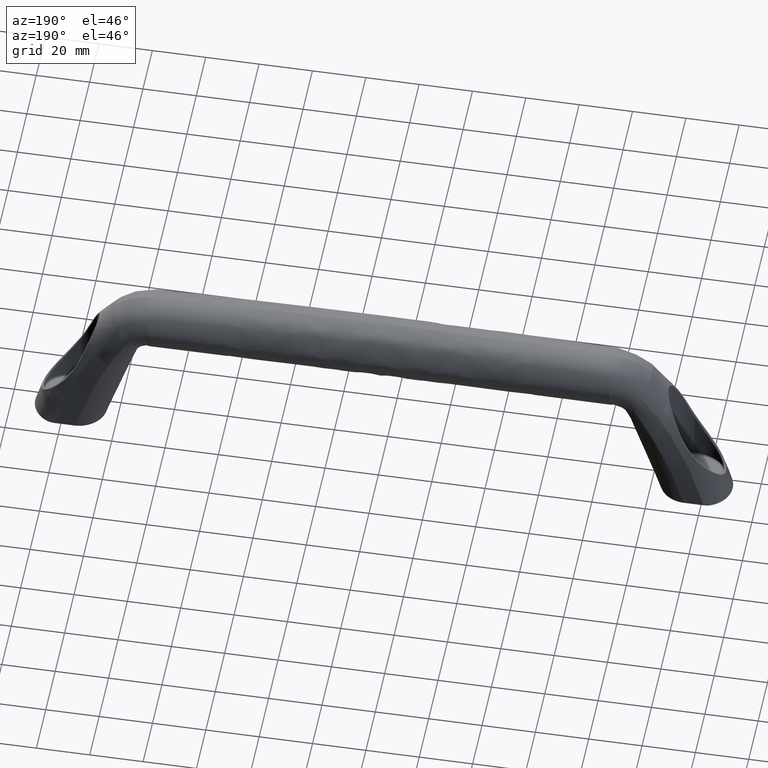
[diagram: clean part render]
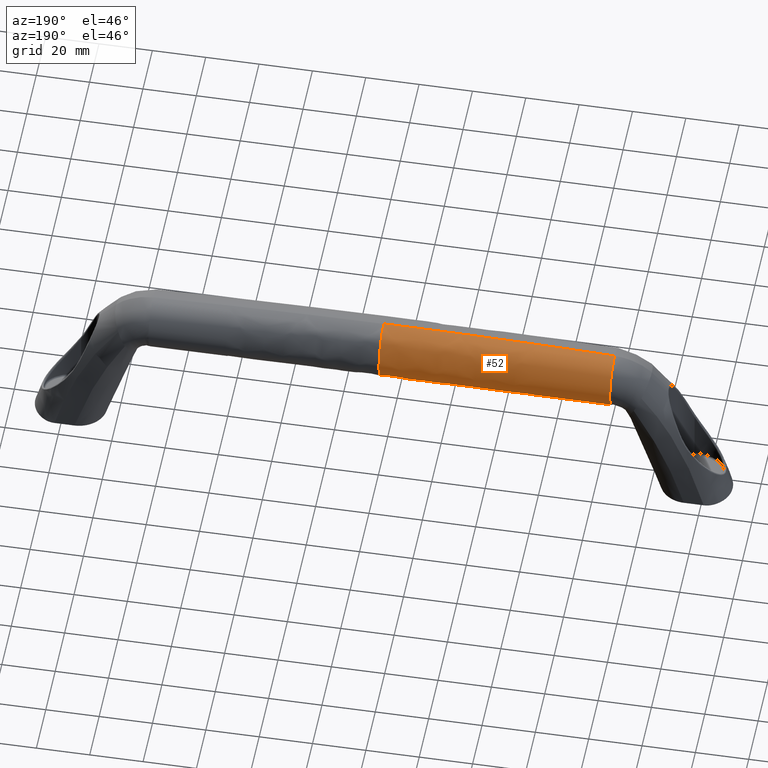
[diagram: same view with one face highlighted and labeled with its STEP entity id]
A machine part, auxiliary view. The second image highlights one B-rep face of the part: STEP entity #52.
In plain terms, the highlighted face is a freeform B-spline surface patch.
Its self-contained STEP definition (entity closure, byte-faithful):
#52=ADVANCED_FACE('',(#227),#226,.T.);
#226=( BOUNDED_SURFACE() B_SPLINE_SURFACE( 3,3,((#2243,#2244,#2245,#2246,#2247,#2248,#2249,#2250,#2251,#2252,#2253,#2254,#2255,#2256,#2257,#2258,#2259,#2260,#2261,#2262,#2263,#2264,#2265,#2266,#2267,#2268,#2269,#2270,#2271,#2272,#2273,#2274,#2275),(#2276,#2277,#2278,#2279,#2280,#2281,#2282,#2283,#2284,#2285,#2286,#2287,#2288,#2289,#2290,#2291,#2292,#2293,#2294,#2295,#2296,#2297,#2298,#2299,#2300,#2301,#2302,#2303,#2304,#2305,#2306,#2307,#2308),(#2309,#2310,#2311,#2312,#2313,#2314,#2315,#2316,#2317,#2318,#2319,#2320,#2321,#2322,#2323,#2324,#2325,#2326,#2327,#2328,#2329,#2330,#2331,#2332,#2333,#2334,#2335,#2336,#2337,#2338,#2339,#2340,#2341),(#2342,#2343,#2344,#2345,#2346,#2347,#2348,#2349,#2350,#2351,#2352,#2353,#2354,#2355,#2356,#2357,#2358,#2359,#2360,#2361,#2362,#2363,#2364,#2365,#2366,#2367,#2368,#2369,#2370,#2371,#2372,#2373,#2374),(#2375,#2376,#2377,#2378,#2379,#2380,#2381,#2382,#2383,#2384,#2385,#2386,#2387,#2388,#2389,#2390,#2391,#2392,#2393,#2394,#2395,#2396,#2397,#2398,#2399,#2400,#2401,#2402,#2403,#2404,#2405,#2406,#2407),(#2408,#2409,#2410,#2411,#2412,#2413,#2414,#2415,#2416,#2417,#2418,#2419,#2420,#2421,#2422,#2423,#2424,#2425,#2426,#2427,#2428,#2429,#2430,#2431,#2432,#2433,#2434,#2435,#2436,#2437,#2438,#2439,#2440)), .UNSPECIFIED.,.F.,.F.,.F.) B_SPLINE_SURFACE_WITH_KNOTS((4,1,1,4),(4,1,1,1,1,1,1,1,1,1,1,1,1,1,1,1,1,1,1,1,1,1,1,1,1,1,1,1,1,1,4),(-2.22044604925E-15,2.88297743297E+01,5.76595486595E+01,8.64893229921E+01),(0.00000000000E+00,1.13196355772E+00,2.26392711543E+00,3.39589067315E+00,4.52785423087E+00,5.65981778858E+00,6.79178134630E+00,7.92374490401E+00,9.05570846173E+00,1.01876720194E+01,1.13196355772E+01,1.24515991349E+01,1.35835626926E+01,1.47155262503E+01,1.58474898080E+01,1.69794533657E+01,1.81114169235E+01,1.92433804812E+01,2.03753440389E+01,2.15073075966E+01,2.26392711543E+01,2.37712347120E+01,2.49031982698E+01,2.60351618275E+01,2.71671253852E+01,2.82990889429E+01,2.94310525006E+01,3.05630160583E+01,3.16949796161E+01,3.28269431738E+01,3.39589067315E+01), .UNSPECIFIED. ) GEOMETRIC_REPRESENTATION_ITEM() RATIONAL_B_SPLINE_SURFACE(((1.00000000000E+00,1.00000000000E+00,1.00000000000E+00,1.00000000000E+00,1.00000000000E+00,1.00000000000E+00,1.00000000000E+00,1.00000000000E+00,1.00000000000E+00,1.00000000000E+00,1.00000000000E+00,1.00000000000E+00,1.00000000000E+00,1.00000000000E+00,1.00000000000E+00,1.00000000000E+00,1.00000000000E+00,1.00000000000E+00,1.00000000000E+00,1.00000000000E+00,1.00000000000E+00,1.00000000000E+00,1.00000000000E+00,1.00000000000E+00,1.00000000000E+00,1.00000000000E+00,1.00000000000E+00,1.00000000000E+00,1.00000000000E+00,1.00000000000E+00,1.00000000000E+00,1.00000000000E+00,1.00000000000E+00),(1.00000000000E+00,1.00000000000E+00,1.00000000000E+00,1.00000000000E+00,1.00000000000E+00,1.00000000000E+00,1.00000000000E+00,1.00000000000E+00,1.00000000000E+00,1.00000000000E+00,1.00000000000E+00,1.00000000000E+00,1.00000000000E+00,1.00000000000E+00,1.00000000000E+00,1.00000000000E+00,1.00000000000E+00,1.00000000000E+00,1.00000000000E+00,1.00000000000E+00,1.00000000000E+00,1.00000000000E+00,1.00000000000E+00,1.00000000000E+00,1.00000000000E+00,1.00000000000E+00,1.00000000000E+00,1.00000000000E+00,1.00000000000E+00,1.00000000000E+00,1.00000000000E+00,1.00000000000E+00,1.00000000000E+00),(1.00000000000E+00,1.00000000000E+00,1.00000000000E+00,1.00000000000E+00,1.00000000000E+00,1.00000000000E+00,1.00000000000E+00,1.00000000000E+00,1.00000000000E+00,1.00000000000E+00,1.00000000000E+00,1.00000000000E+00,1.00000000000E+00,1.00000000000E+00,1.00000000000E+00,1.00000000000E+00,1.00000000000E+00,1.00000000000E+00,1.00000000000E+00,1.00000000000E+00,1.00000000000E+00,1.00000000000E+00,1.00000000000E+00,1.00000000000E+00,1.00000000000E+00,1.00000000000E+00,1.00000000000E+00,1.00000000000E+00,1.00000000000E+00,1.00000000000E+00,1.00000000000E+00,1.00000000000E+00,1.00000000000E+00),(1.00000000000E+00,1.00000000000E+00,1.00000000000E+00,1.00000000000E+00,1.00000000000E+00,1.00000000000E+00,1.00000000000E+00,1.00000000000E+00,1.00000000000E+00,1.00000000000E+00,1.00000000000E+00,1.00000000000E+00,1.00000000000E+00,1.00000000000E+00,1.00000000000E+00,1.00000000000E+00,1.00000000000E+00,1.00000000000E+00,1.00000000000E+00,1.00000000000E+00,1.00000000000E+00,1.00000000000E+00,1.00000000000E+00,1.00000000000E+00,1.00000000000E+00,1.00000000000E+00,1.00000000000E+00,1.00000000000E+00,1.00000000000E+00,1.00000000000E+00,1.00000000000E+00,1.00000000000E+00,1.00000000000E+00),(1.00000000000E+00,1.00000000000E+00,1.00000000000E+00,1.00000000000E+00,1.00000000000E+00,1.00000000000E+00,1.00000000000E+00,1.00000000000E+00,1.00000000000E+00,1.00000000000E+00,1.00000000000E+00,1.00000000000E+00,1.00000000000E+00,1.00000000000E+00,1.00000000000E+00,1.00000000000E+00,1.00000000000E+00,1.00000000000E+00,1.00000000000E+00,1.00000000000E+00,1.00000000000E+00,1.00000000000E+00,1.00000000000E+00,1.00000000000E+00,1.00000000000E+00,1.00000000000E+00,1.00000000000E+00,1.00000000000E+00,1.00000000000E+00,1.00000000000E+00,1.00000000000E+00,1.00000000000E+00,1.00000000000E+00),(1.00000000000E+00,1.00000000000E+00,1.00000000000E+00,1.00000000000E+00,1.00000000000E+00,1.00000000000E+00,1.00000000000E+00,1.00000000000E+00,1.00000000000E+00,1.00000000000E+00,1.00000000000E+00,1.00000000000E+00,1.00000000000E+00,1.00000000000E+00,1.00000000000E+00,1.00000000000E+00,1.00000000000E+00,1.00000000000E+00,1.00000000000E+00,1.00000000000E+00,1.00000000000E+00,1.00000000000E+00,1.00000000000E+00,1.00000000000E+00,1.00000000000E+00,1.00000000000E+00,1.00000000000E+00,1.00000000000E+00,1.00000000000E+00,1.00000000000E+00,1.00000000000E+00,1.00000000000E+00,1.00000000000E+00))) REPRESENTATION_ITEM('') SURFACE() );
#227=FACE_OUTER_BOUND('',#2441,.T.);
#2243=CARTESIAN_POINT('',(1.55659404912E-12,-1.20000000040E+01,9.00000000399E+00));
#2244=CARTESIAN_POINT('',(1.57435141283E-12,-1.16158452896E+01,9.00000000399E+00));
#2245=CARTESIAN_POINT('',(1.60955904689E-12,-1.08468813137E+01,9.04224869099E+00));
#2246=CARTESIAN_POINT('',(1.66200386786E-12,-9.70778322208E+00,9.23160777299E+00));
#2247=CARTESIAN_POINT('',(1.71285208239E-12,-8.59591558188E+00,9.54477703599E+00));
#2248=CARTESIAN_POINT('',(1.76081371706E-12,-7.52538479268E+00,9.97782217699E+00));
#2249=CARTESIAN_POINT('',(1.80677695027E-12,-6.50864986007E+00,1.05256287250E+01));
#2250=CARTESIAN_POINT('',(1.85118587126E-12,-5.55804649991E+00,1.11816308370E+01));
#2251=CARTESIAN_POINT('',(1.89270821238E-12,-4.68514189989E+00,1.19377605590E+01));
#2252=CARTESIAN_POINT('',(1.92601490312E-12,-3.90007278569E+00,1.27854876870E+01));
#2253=CARTESIAN_POINT('',(1.95843341544E-12,-3.21394448134E+00,1.37122097166E+01));
#2254=CARTESIAN_POINT('',(1.98618899105E-12,-2.63234439968E+00,1.47102556607E+01));
#2255=CARTESIAN_POINT('',(2.00728322852E-12,-2.16367491594E+00,1.57661991356E+01));
#2256=CARTESIAN_POINT('',(2.02282635087E-12,-1.81351810109E+00,1.68674833019E+01));
#2257=CARTESIAN_POINT('',(2.03304040269E-12,-1.58645038489E+00,1.79996011452E+01));
#2258=CARTESIAN_POINT('',(2.03836947321E-12,-1.48453646889E+00,1.91501644517E+01));
#2259=CARTESIAN_POINT('',(2.03614902716E-12,-1.51025115579E+00,2.03046140883E+01));
#2260=CARTESIAN_POINT('',(2.03015382283E-12,-1.65904683929E+00,2.14505081516E+01));
#2261=CARTESIAN_POINT('',(2.02038386021E-12,-1.94485266209E+00,2.25686164421E+01));
#2262=CARTESIAN_POINT('',(2.00262029182E-12,-2.30405942514E+00,2.36645445311E+01));
#2263=CARTESIAN_POINT('',(1.98374650040E-12,-2.69617613201E+00,2.47496545682E+01));
#2264=CARTESIAN_POINT('',(1.96420657517E-12,-3.13574661354E+00,2.58165315122E+01));
#2265=CARTESIAN_POINT('',(1.94555482835E-12,-3.60060805886E+00,2.68708257062E+01));
#2266=CARTESIAN_POINT('',(1.91779925274E-12,-4.15886070966E+00,2.78826072742E+01));
#2267=CARTESIAN_POINT('',(1.88649096344E-12,-4.85178297301E+00,2.88077760712E+01));
#2268=CARTESIAN_POINT('',(1.84963155903E-12,-5.65455101414E+00,2.96386614145E+01));
#2269=CARTESIAN_POINT('',(1.81143988698E-12,-6.55764958649E+00,3.03597091163E+01));
#2270=CARTESIAN_POINT('',(1.76680892139E-12,-7.54525366514E+00,3.09594425880E+01));
#2271=CARTESIAN_POINT('',(1.71818115291E-12,-8.60177426324E+00,3.14286467588E+01));
#2272=CARTESIAN_POINT('',(1.66733293838E-12,-9.70825643407E+00,3.17566276823E+01));
#2273=CARTESIAN_POINT('',(1.61636841478E-12,-1.08482253092E+01,3.19558398309E+01));
#2274=CARTESIAN_POINT('',(1.58073181593E-12,-1.16160956324E+01,3.20000000044E+01));
#2275=CARTESIAN_POINT('',(1.56416056380E-12,-1.20000000040E+01,3.20000000044E+01));
#2276=CARTESIAN_POINT('',(-9.60910898758E+00,-1.20000000040E+01,9.00000000399E+00));
#2277=CARTESIAN_POINT('',(-9.60912987691E+00,-1.16174073802E+01,9.00185185599E+00));
#2278=CARTESIAN_POINT('',(-9.60917111667E+00,-1.08515756932E+01,9.04746625199E+00));
#2279=CARTESIAN_POINT('',(-9.60923136856E+00,-9.71700480867E+00,9.24087219099E+00));
#2280=CARTESIAN_POINT('',(-9.60929003829E+00,-8.60933885869E+00,9.55712158899E+00));
#2281=CARTESIAN_POINT('',(-9.60934717152E+00,-7.54251319403E+00,9.99234811299E+00));
#2282=CARTESIAN_POINT('',(-9.60940283095E+00,-6.52888713495E+00,1.05414987070E+01));
#2283=CARTESIAN_POINT('',(-9.60945709385E+00,-5.58063485286E+00,1.11981124870E+01));
#2284=CARTESIAN_POINT('',(-9.60951005337E+00,-4.70919531125E+00,1.19542648670E+01));
#2285=CARTESIAN_POINT('',(-9.60956182170E+00,-3.92466543889E+00,1.28014665792E+01));
#2286=CARTESIAN_POINT('',(-9.60961250791E+00,-3.23782997485E+00,1.37276335844E+01));
#2287=CARTESIAN_POINT('',(-9.60966229681E+00,-2.65474644284E+00,1.47244534051E+01));
#2288=CARTESIAN_POINT('',(-9.60971123621E+00,-2.18317945439E+00,1.57796048448E+01));
#2289=CARTESIAN_POINT('',(-9.60975957735E+00,-1.82912130809E+00,1.68798954201E+01));
#2290=CARTESIAN_POINT('',(-9.60980738587E+00,-1.59684198129E+00,1.80118992719E+01));
#2291=CARTESIAN_POINT('',(-9.60985492708E+00,-1.48874730909E+00,1.91624600230E+01));
#2292=CARTESIAN_POINT('',(-9.60990231089E+00,-1.50708795369E+00,2.03177476060E+01));
#2293=CARTESIAN_POINT('',(-9.60994972480E+00,-1.64792320899E+00,2.14651870001E+01));
#2294=CARTESIAN_POINT('',(-9.60999733092E+00,-1.92348670659E+00,2.25863740940E+01));
#2295=CARTESIAN_POINT('',(-9.61004531568E+00,-2.27716223194E+00,2.36847845524E+01));
#2296=CARTESIAN_POINT('',(-9.61009378257E+00,-2.67196378315E+00,2.47696816079E+01));
#2297=CARTESIAN_POINT('',(-9.61014311983E+00,-3.12256057274E+00,2.58313354259E+01));
#2298=CARTESIAN_POINT('',(-9.61019254718E+00,-3.59705149825E+00,2.68810764143E+01));
#2299=CARTESIAN_POINT('',(-9.61024279085E+00,-4.16575297209E+00,2.78864293585E+01));
#2300=CARTESIAN_POINT('',(-9.61029414984E+00,-4.86481648031E+00,2.88057770641E+01));
#2301=CARTESIAN_POINT('',(-9.61034670332E+00,-5.67118748135E+00,2.96316613184E+01));
#2302=CARTESIAN_POINT('',(-9.61040059879E+00,-6.57519288973E+00,3.03490635622E+01));
#2303=CARTESIAN_POINT('',(-9.61045593479E+00,-7.56156814142E+00,3.09469860495E+01));
#2304=CARTESIAN_POINT('',(-9.61051280439E+00,-8.61510821923E+00,3.14164850806E+01));
#2305=CARTESIAN_POINT('',(-9.61057127877E+00,-9.71755467281E+00,3.17474795273E+01));
#2306=CARTESIAN_POINT('',(-9.61063140996E+00,-1.08527938164E+01,3.19506194978E+01));
#2307=CARTESIAN_POINT('',(-9.61067262311E+00,-1.16176363121E+01,3.19981481434E+01));
#2308=CARTESIAN_POINT('',(-9.61069351243E+00,-1.20000000040E+01,3.19999999953E+01));
#2309=CARTESIAN_POINT('',(-2.88273269627E+01,-1.20000000040E+01,9.00000000499E+00));
#2310=CARTESIAN_POINT('',(-2.88273892556E+01,-1.16205315615E+01,9.00432090699E+00));
#2311=CARTESIAN_POINT('',(-2.88275122246E+01,-1.08609644524E+01,9.05419741099E+00));
#2312=CARTESIAN_POINT('',(-2.88276918549E+01,-9.73544798185E+00,9.25199310399E+00));
#2313=CARTESIAN_POINT('',(-2.88278667387E+01,-8.63618541230E+00,9.57069880799E+00));
#2314=CARTESIAN_POINT('',(-2.88280370130E+01,-7.57676999672E+00,1.00065841390E+01));
#2315=CARTESIAN_POINT('',(-2.88282028659E+01,-6.56936168471E+00,1.05547188640E+01));
#2316=CARTESIAN_POINT('',(-2.88283645292E+01,-5.62581155876E+00,1.12088520160E+01));
#2317=CARTESIAN_POINT('',(-2.88285222824E+01,-4.75730213396E+00,1.19613457490E+01));
#2318=CARTESIAN_POINT('',(-2.88286764620E+01,-3.97385074529E+00,1.28037926700E+01));
#2319=CARTESIAN_POINT('',(-2.88288273953E+01,-3.28560096187E+00,1.37251456645E+01));
#2320=CARTESIAN_POINT('',(-2.88289756366E+01,-2.69955052915E+00,1.47158092768E+01));
#2321=CARTESIAN_POINT('',(-2.88291213294E+01,-2.22218853128E+00,1.57656726843E+01));
#2322=CARTESIAN_POINT('',(-2.88292652274E+01,-1.86032772209E+00,1.68602721160E+01));
#2323=CARTESIAN_POINT('',(-2.88294075276E+01,-1.61762517399E+00,1.79883440228E+01));
#2324=CARTESIAN_POINT('',(-2.88295490258E+01,-1.49716898949E+00,1.91351957014E+01));
#2325=CARTESIAN_POINT('',(-2.88296900519E+01,-1.50076154969E+00,2.02884552157E+01));
#2326=CARTESIAN_POINT('',(-2.88298311682E+01,-1.62567594839E+00,2.14352813097E+01));
#2327=CARTESIAN_POINT('',(-2.88299728612E+01,-1.88075479559E+00,2.25589220487E+01));
#2328=CARTESIAN_POINT('',(-2.88301156901E+01,-2.22336784554E+00,2.36585932841E+01));
#2329=CARTESIAN_POINT('',(-2.88302599654E+01,-2.62353908545E+00,2.47393604146E+01));
#2330=CARTESIAN_POINT('',(-2.88304068518E+01,-3.09618849113E+00,2.57868640188E+01));
#2331=CARTESIAN_POINT('',(-2.88305540084E+01,-3.58993837703E+00,2.68237946345E+01));
#2332=CARTESIAN_POINT('',(-2.88307036141E+01,-4.17953749695E+00,2.78125863692E+01));
#2333=CARTESIAN_POINT('',(-2.88308565657E+01,-4.89088349491E+00,2.87165879302E+01));
#2334=CARTESIAN_POINT('',(-2.88310131007E+01,-5.70446041577E+00,2.95287660450E+01));
#2335=CARTESIAN_POINT('',(-2.88311736618E+01,-6.61027949622E+00,3.02351734107E+01));
#2336=CARTESIAN_POINT('',(-2.88313385443E+01,-7.59419709397E+00,3.08257699677E+01));
#2337=CARTESIAN_POINT('',(-2.88315080278E+01,-8.64177613122E+00,3.12921547578E+01));
#2338=CARTESIAN_POINT('',(-2.88316823255E+01,-9.73615115028E+00,3.16254722892E+01));
#2339=CARTESIAN_POINT('',(-2.88318615937E+01,-1.08619308308E+01,3.18327639415E+01));
#2340=CARTESIAN_POINT('',(-2.88319844829E+01,-1.16207176713E+01,3.18845602235E+01));
#2341=CARTESIAN_POINT('',(-2.88320467757E+01,-1.20000000040E+01,3.18888811255E+01));
#2342=CARTESIAN_POINT('',(-5.76546539264E+01,-1.20000000040E+01,9.00000000499E+00));
#2343=CARTESIAN_POINT('',(-5.76547484548E+01,-1.16252178335E+01,9.00432028899E+00));
#2344=CARTESIAN_POINT('',(-5.76549342782E+01,-1.08750475911E+01,9.05318157099E+00));
#2345=CARTESIAN_POINT('',(-5.76552033669E+01,-9.76311274162E+00,9.24644931499E+00));
#2346=CARTESIAN_POINT('',(-5.76554629625E+01,-8.67645524272E+00,9.55772690199E+00));
#2347=CARTESIAN_POINT('',(-5.76557133392E+01,-7.62815520076E+00,9.98348786299E+00));
#2348=CARTESIAN_POINT('',(-5.76559548731E+01,-6.63007350934E+00,1.05189862060E+01));
#2349=CARTESIAN_POINT('',(-5.76561880278E+01,-5.69357661762E+00,1.11582858390E+01));
#2350=CARTESIAN_POINT('',(-5.76564133623E+01,-4.82946236803E+00,1.18941790220E+01));
#2351=CARTESIAN_POINT('',(-5.76566315495E+01,-4.04762870489E+00,1.27183811764E+01));
#2352=CARTESIAN_POINT('',(-5.76568432441E+01,-3.35725744240E+00,1.36214005763E+01));
#2353=CARTESIAN_POINT('',(-5.76570495548E+01,-2.76675665861E+00,1.45917172974E+01));
#2354=CARTESIAN_POINT('',(-5.76572507686E+01,-2.28070214661E+00,1.56225360778E+01));
#2355=CARTESIAN_POINT('',(-5.76574483927E+01,-1.90713734309E+00,1.66974862154E+01));
#2356=CARTESIAN_POINT('',(-5.76576428211E+01,-1.64879996299E+00,1.78085476261E+01));
#2357=CARTESIAN_POINT('',(-5.76578356457E+01,-1.50980151009E+00,1.89387231171E+01));
#2358=CARTESIAN_POINT('',(-5.76580275259E+01,-1.49127194349E+00,2.00778279497E+01));
#2359=CARTESIAN_POINT('',(-5.76582195866E+01,-1.59230505748E+00,2.12126215149E+01));
#2360=CARTESIAN_POINT('',(-5.76584128007E+01,-1.81665692908E+00,2.23288301428E+01));
#2361=CARTESIAN_POINT('',(-5.76586082866E+01,-2.14267626594E+00,2.34192799649E+01));
#2362=CARTESIAN_POINT('',(-5.76588066652E+01,-2.55090203888E+00,2.44827396292E+01));
#2363=CARTESIAN_POINT('',(-5.76590102661E+01,-3.05663036871E+00,2.54979053342E+01));
#2364=CARTESIAN_POINT('',(-5.76592144075E+01,-3.57926869518E+00,2.65045078119E+01));
#2365=CARTESIAN_POINT('',(-5.76594234468E+01,-4.20021428425E+00,2.74573451539E+01));
#2366=CARTESIAN_POINT('',(-5.76596391781E+01,-4.92998401681E+00,2.83272149192E+01));
#2367=CARTESIAN_POINT('',(-5.76598620762E+01,-5.75436981740E+00,2.91077212460E+01));
#2368=CARTESIAN_POINT('',(-5.76600930264E+01,-6.66290940595E+00,2.97865237160E+01));
#2369=CARTESIAN_POINT('',(-5.76603326197E+01,-7.64314052281E+00,3.03550187987E+01));
#2370=CARTESIAN_POINT('',(-5.76605814146E+01,-8.68177799920E+00,3.08056196485E+01));
#2371=CARTESIAN_POINT('',(-5.76608398382E+01,-9.76404586650E+00,3.11313092283E+01));
#2372=CARTESIAN_POINT('',(-5.76611082026E+01,-1.08756363524E+01,3.13337158248E+01));
#2373=CARTESIAN_POINT('',(-5.76612938664E+01,-1.16253397102E+01,3.13845051755E+01));
#2374=CARTESIAN_POINT('',(-5.76613883948E+01,-1.20000000040E+01,3.13888254596E+01));
#2375=CARTESIAN_POINT('',(-7.68728719025E+01,-1.20000000040E+01,9.00000000499E+00));
#2376=CARTESIAN_POINT('',(-7.68729171387E+01,-1.16283420148E+01,9.00185140199E+00));
#2377=CARTESIAN_POINT('',(-7.68730032999E+01,-1.08844363502E+01,9.04509892099E+00));
#2378=CARTESIAN_POINT('',(-7.68731196797E+01,-9.78155591481E+00,9.22794260899E+00));
#2379=CARTESIAN_POINT('',(-7.68732234022E+01,-8.70330179633E+00,9.52686269298E+00));
#2380=CARTESIAN_POINT('',(-7.68733148327E+01,-7.66241200345E+00,9.93846865098E+00));
#2381=CARTESIAN_POINT('',(-7.68733944728E+01,-6.67054805910E+00,1.04581373160E+01));
#2382=CARTESIAN_POINT('',(-7.68734629407E+01,-5.73875332352E+00,1.10801425110E+01));
#2383=CARTESIAN_POINT('',(-7.68735209815E+01,-4.87756919074E+00,1.17975632390E+01));
#2384=CARTESIAN_POINT('',(-7.68735694928E+01,-4.09681401128E+00,1.26021967911E+01));
#2385=CARTESIAN_POINT('',(-7.68736093472E+01,-3.40502842943E+00,1.34855883708E+01));
#2386=CARTESIAN_POINT('',(-7.68736420230E+01,-2.81156074492E+00,1.44349350740E+01));
#2387=CARTESIAN_POINT('',(-7.68736679029E+01,-2.31971122350E+00,1.54456520128E+01));
#2388=CARTESIAN_POINT('',(-7.68736889966E+01,-1.93834375709E+00,1.65000971972E+01));
#2389=CARTESIAN_POINT('',(-7.68737058295E+01,-1.66958315569E+00,1.75924128534E+01));
#2390=CARTESIAN_POINT('',(-7.68737205238E+01,-1.51822319049E+00,1.87040654625E+01));
#2391=CARTESIAN_POINT('',(-7.68737339590E+01,-1.48494553938E+00,1.98263284168E+01));
#2392=CARTESIAN_POINT('',(-7.68737476349E+01,-1.57005779688E+00,2.09456948723E+01));
#2393=CARTESIAN_POINT('',(-7.68737628485E+01,-1.77392501798E+00,2.20495433358E+01));
#2394=CARTESIAN_POINT('',(-7.68737810913E+01,-2.08888187954E+00,2.31264401254E+01));
#2395=CARTESIAN_POINT('',(-7.68738031910E+01,-2.50247734118E+00,2.41709560552E+01));
#2396=CARTESIAN_POINT('',(-7.68738322538E+01,-3.03025828710E+00,2.51571577371E+01));
#2397=CARTESIAN_POINT('',(-7.68738620373E+01,-3.57215557396E+00,2.61361360324E+01));
#2398=CARTESIAN_POINT('',(-7.68738983513E+01,-4.21399880911E+00,2.70575983553E+01));
#2399=CARTESIAN_POINT('',(-7.68739435879E+01,-4.95605103141E+00,2.78973081666E+01));
#2400=CARTESIAN_POINT('',(-7.68739983804E+01,-5.78764275182E+00,2.86492945444E+01));
#2401=CARTESIAN_POINT('',(-7.68740639089E+01,-6.69799601244E+00,2.93022883268E+01));
#2402=CARTESIAN_POINT('',(-7.68741409615E+01,-7.67576947536E+00,2.98486436697E+01));
#2403=CARTESIAN_POINT('',(-7.68742302829E+01,-8.70844591119E+00,3.02813164689E+01));
#2404=CARTESIAN_POINT('',(-7.68743324427E+01,-9.78264234398E+00,3.05945153239E+01));
#2405=CARTESIAN_POINT('',(-7.68744478568E+01,-1.08847733667E+01,3.07862597928E+01));
#2406=CARTESIAN_POINT('',(-7.68745338051E+01,-1.16284210695E+01,3.08314409069E+01));
#2407=CARTESIAN_POINT('',(-7.68745790413E+01,-1.20000000040E+01,3.08332923044E+01));
#2408=CARTESIAN_POINT('',(-8.64819808911E+01,-1.20000000040E+01,9.00000000499E+00));
#2409=CARTESIAN_POINT('',(-8.64819808911E+01,-1.16299041054E+01,9.00000000599E+00));
#2410=CARTESIAN_POINT('',(-8.64819760411E+01,-1.08891307298E+01,9.03920673599E+00));
#2411=CARTESIAN_POINT('',(-8.64819542964E+01,-9.79077750140E+00,9.21498753598E+00));
#2412=CARTESIAN_POINT('',(-8.64819183121E+01,-8.71672507314E+00,9.50587800798E+00));
#2413=CARTESIAN_POINT('',(-8.64818684994E+01,-7.67954040480E+00,9.90855560398E+00));
#2414=CARTESIAN_POINT('',(-8.64818054225E+01,-6.69078533398E+00,1.04184585700E+01));
#2415=CARTESIAN_POINT('',(-8.64817297768E+01,-5.76134167647E+00,1.10299656860E+01));
#2416=CARTESIAN_POINT('',(-8.64816424007E+01,-4.90162260210E+00,1.17362993260E+01));
#2417=CARTESIAN_POINT('',(-8.64815443039E+01,-4.12140666448E+00,1.25292977173E+01));
#2418=CARTESIAN_POINT('',(-8.64814364680E+01,-3.42891392294E+00,1.34010245267E+01));
#2419=CARTESIAN_POINT('',(-8.64813205563E+01,-2.83396278808E+00,1.43380353608E+01));
#2420=CARTESIAN_POINT('',(-8.64811969992E+01,-2.33921576195E+00,1.53368505186E+01));
#2421=CARTESIAN_POINT('',(-8.64810680576E+01,-1.95394696409E+00,1.63791923664E+01));
#2422=CARTESIAN_POINT('',(-8.64809343225E+01,-1.67997475199E+00,1.74602842851E+01));
#2423=CARTESIAN_POINT('',(-8.64807981815E+01,-1.52243403069E+00,1.85608245930E+01));
#2424=CARTESIAN_POINT('',(-8.64806606242E+01,-1.48178233738E+00,1.96728157480E+01));
#2425=CARTESIAN_POINT('',(-8.64805233374E+01,-1.55893416658E+00,2.07826177886E+01));
#2426=CARTESIAN_POINT('',(-8.64803877807E+01,-1.75255906248E+00,2.18784353098E+01));
#2427=CARTESIAN_POINT('',(-8.64802556318E+01,-2.06198468634E+00,2.29467047229E+01));
#2428=CARTESIAN_POINT('',(-8.64801278220E+01,-2.47826499233E+00,2.39798979253E+01));
#2429=CARTESIAN_POINT('',(-8.64800078456E+01,-3.01707224630E+00,2.49497667354E+01));
#2430=CARTESIAN_POINT('',(-8.64798886799E+01,-3.56859901334E+00,2.59130820795E+01));
#2431=CARTESIAN_POINT('',(-8.64797768612E+01,-4.22089107155E+00,2.68170060329E+01));
#2432=CARTESIAN_POINT('',(-8.64796750804E+01,-4.96908453871E+00,2.76397850069E+01));
#2433=CARTESIAN_POINT('',(-8.64795840498E+01,-5.80427921903E+00,2.83756605501E+01));
#2434=CARTESIAN_POINT('',(-8.64795050973E+01,-6.71553931568E+00,2.90138991286E+01));
#2435=CARTESIAN_POINT('',(-8.64794391095E+01,-7.69208395164E+00,2.95473337413E+01));
#2436=CARTESIAN_POINT('',(-8.64793869241E+01,-8.72177986718E+00,2.99691916551E+01));
#2437=CARTESIAN_POINT('',(-8.64793491818E+01,-9.79194058272E+00,3.02742942876E+01));
#2438=CARTESIAN_POINT('',(-8.64793263507E+01,-1.08893418739E+01,3.04588568326E+01));
#2439=CARTESIAN_POINT('',(-8.64793212611E+01,-1.16299617491E+01,3.04999999216E+01));
#2440=CARTESIAN_POINT('',(-8.64793212611E+01,-1.20000000040E+01,3.04999999225E+01));
#2441=EDGE_LOOP('',(#7472,#7473,#7474,#7475));
#7472=ORIENTED_EDGE('',*,*,#7757,.T.);
#7473=ORIENTED_EDGE('',*,*,#7756,.F.);
#7474=ORIENTED_EDGE('',*,*,#7758,.T.);
#7475=ORIENTED_EDGE('',*,*,#7759,.T.);
#7756=EDGE_CURVE('',#8180,#8160,#8187,.T.);
#7757=EDGE_CURVE('',#8193,#8160,#8194,.T.);
#7758=EDGE_CURVE('',#8180,#8200,#8201,.T.);
#7759=EDGE_CURVE('',#8200,#8193,#8207,.T.);
#8160=VERTEX_POINT('',#9401);
#8180=VERTEX_POINT('',#9432);
#8187=(BOUNDED_CURVE() B_SPLINE_CURVE(3,(#9452,#9453,#9454,#9455,#9456,#9457,#9458,#9459,#9460,#9461,#9462,#9463,#9464,#9465,#9466,#9467),.UNSPECIFIED.,.F.,.F.) B_SPLINE_CURVE_WITH_KNOTS((4,3,3,3,3,4),(0.00000000000E+00,1.04403474347E+01,1.15505649820E+01,1.26601474979E+01,2.36853680444E+01,3.47105885908E+01),.UNSPECIFIED.) CURVE() GEOMETRIC_REPRESENTATION_ITEM() RATIONAL_B_SPLINE_CURVE((1.00000000000E+00,9.18391695828E-01,9.18391695828E-01,1.00000000000E+00,1.00000000000E+00,1.00000000000E+00,1.00000000000E+00,1.00000000000E+00,1.00000000000E+00,1.00000000000E+00,9.17549066432E-01,9.17549066432E-01,1.00000000000E+00,9.17549066432E-01,9.17549066432E-01,1.00000000000E+00)) REPRESENTATION_ITEM('') );
#8193=VERTEX_POINT('',#9468);
#8194=LINE('',#9469,#9470);
#8200=VERTEX_POINT('',#9472);
#8201=CIRCLE('',#9476,2.49364930544E+03);
#8207=(BOUNDED_CURVE() B_SPLINE_CURVE(3,(#9477,#9478,#9479,#9480,#9481,#9482,#9483,#9484,#9485,#9486,#9487,#9488,#9489,#9490,#9491,#9492,#9493,#9494,#9495,#9496,#9497,#9498,#9499,#9500,#9501,#9502,#9503,#9504,#9505,#9506,#9507,#9508,#9509),.UNSPECIFIED.,.F.,.F.) B_SPLINE_CURVE_WITH_KNOTS((4,1,1,1,1,1,1,1,1,1,1,1,1,1,1,1,1,1,1,1,1,1,1,1,1,1,1,1,1,1,4),(0.00000000000E+00,1.15479029643E+00,2.30958059286E+00,3.46437088939E+00,4.61916118582E+00,5.77395148225E+00,6.92874177868E+00,8.08353207511E+00,9.23832237154E+00,1.03931126681E+01,1.15479029645E+01,1.27026932609E+01,1.38574835574E+01,1.50122738538E+01,1.61670641502E+01,1.73218544467E+01,1.84766447432E+01,1.96314350396E+01,2.07862253360E+01,2.19410156325E+01,2.30958059289E+01,2.42505962254E+01,2.54053865218E+01,2.65601768183E+01,2.77149671147E+01,2.88697574112E+01,3.00245477076E+01,3.11793380041E+01,3.23341283005E+01,3.34889185969E+01,3.46437088934E+01),.UNSPECIFIED.) CURVE() GEOMETRIC_REPRESENTATION_ITEM() RATIONAL_B_SPLINE_CURVE((1.00000000000E+00,1.00000000000E+00,1.00000000000E+00,1.00000000000E+00,1.00000000000E+00,1.00000000000E+00,1.00000000000E+00,1.00000000000E+00,1.00000000000E+00,1.00000000000E+00,1.00000000000E+00,1.00000000000E+00,1.00000000000E+00,1.00000000000E+00,1.00000000000E+00,1.00000000000E+00,1.00000000000E+00,1.00000000000E+00,1.00000000000E+00,1.00000000000E+00,1.00000000000E+00,1.00000000000E+00,1.00000000000E+00,1.00000000000E+00,1.00000000000E+00,1.00000000000E+00,1.00000000000E+00,1.00000000000E+00,1.00000000000E+00,1.00000000000E+00,1.00000000000E+00,1.00000000000E+00,1.00000000000E+00)) REPRESENTATION_ITEM('') );
#9401=CARTESIAN_POINT('',(-8.64819808882E+01,-1.20000000040E+01,9.00000000499E+00));
#9432=CARTESIAN_POINT('',(-8.64793212583E+01,-1.20000000040E+01,3.04999998403E+01));
#9452=CARTESIAN_POINT('',(-8.64793212583E+01,-1.20000000040E+01,3.04999998403E+01));
#9453=CARTESIAN_POINT('',(-8.64793212583E+01,-8.51988419241E+00,3.04999998403E+01));
#9454=CARTESIAN_POINT('',(-8.64795276487E+01,-5.46577790541E+00,2.88315751920E+01));
#9455=CARTESIAN_POINT('',(-8.64798927225E+01,-3.57001267889E+00,2.58803793354E+01));
#9456=CARTESIAN_POINT('',(-8.64799283760E+01,-3.38487038648E+00,2.55921626519E+01));
#9457=CARTESIAN_POINT('',(-8.64799681176E+01,-3.20092644933E+00,2.52708984762E+01));
#9458=CARTESIAN_POINT('',(-8.64800079877E+01,-3.01914576199E+00,2.49485949184E+01));
#9459=CARTESIAN_POINT('',(-8.64800478351E+01,-2.83746905105E+00,2.46264757144E+01));
#9460=CARTESIAN_POINT('',(-8.64800878269E+01,-2.65786812767E+00,2.43031886265E+01));
#9461=CARTESIAN_POINT('',(-8.64801260945E+01,-2.51217138763E+00,2.39938396286E+01));
#9462=CARTESIAN_POINT('',(-8.64805405042E+01,-9.34384952804E-01,2.06438219664E+01));
#9463=CARTESIAN_POINT('',(-8.64809942243E+01,-1.16553119040E+00,1.69760247316E+01));
#9464=CARTESIAN_POINT('',(-8.64813780558E+01,-3.13495201341E+00,1.38731958903E+01));
#9465=CARTESIAN_POINT('',(-8.64817618872E+01,-5.10437283642E+00,1.07703670489E+01));
#9466=CARTESIAN_POINT('',(-8.64819808882E+01,-8.32492648850E+00,9.00000000495E+00));
#9467=CARTESIAN_POINT('',(-8.64819808882E+01,-1.20000000040E+01,9.00000000499E+00));
#9468=CARTESIAN_POINT('',(1.55613319904E-12,-1.20000000040E+01,9.00000000399E+00));
#9469=CARTESIAN_POINT('',(1.55613319904E-12,-1.20000000040E+01,9.00000000399E+00));
#9470=VECTOR('',#9471,8.64819808882E+01);
#9471=DIRECTION('',(-1.00000000000E+00,4.62359812347E-14,1.15632060489E-11));
#9472=CARTESIAN_POINT('',(1.56684305108E-12,-1.20000000040E+01,3.20000000044E+01));
#9473=CARTESIAN_POINT('',(1.48757837401E-04,-1.20000000041E+01,-2.46164930544E+03));
#9474=DIRECTION('',(3.25680311677E-14,1.00000000000E+00,-6.10200969331E-14));
#9475=DIRECTION('',(3.46798845481E-02,-6.21128471901E-14,-9.99398471886E-01));
#9476=AXIS2_PLACEMENT_3D('',#9473,#9474,#9475);
#9477=CARTESIAN_POINT('',(1.56684305108E-12,-1.20000000040E+01,3.20000000044E+01));
#9478=CARTESIAN_POINT('',(1.58421199947E-12,-1.16160956324E+01,3.20000000044E+01));
#9479=CARTESIAN_POINT('',(1.61894577447E-12,-1.08482253092E+01,3.19558398309E+01));
#9480=CARTESIAN_POINT('',(1.67048764161E-12,-9.70825643407E+00,3.17566276823E+01));
#9481=CARTESIAN_POINT('',(1.72048740667E-12,-8.60177426324E+00,3.14286467588E+01));
#9482=CARTESIAN_POINT('',(1.76819435894E-12,-7.54525366514E+00,3.09594425880E+01));
#9483=CARTESIAN_POINT('',(1.81274869944E-12,-6.55764958649E+00,3.03597091163E+01));
#9484=CARTESIAN_POINT('',(1.85344337544E-12,-5.65455101414E+00,2.96386614145E+01));
#9485=CARTESIAN_POINT('',(1.88956096102E-12,-4.85178297301E+00,2.88077760712E+01));
#9486=CARTESIAN_POINT('',(1.92067143958E-12,-4.15886070966E+00,2.78826072742E+01));
#9487=CARTESIAN_POINT('',(1.94564780587E-12,-3.60060805886E+00,2.68708257062E+01));
#9488=CARTESIAN_POINT('',(1.96637301483E-12,-3.13574661354E+00,2.58165315122E+01));
#9489=CARTESIAN_POINT('',(1.98594681422E-12,-2.69617613201E+00,2.47496545682E+01));
#9490=CARTESIAN_POINT('',(2.00336105090E-12,-2.30405942514E+00,2.36645445311E+01));
#9491=CARTESIAN_POINT('',(2.01927788297E-12,-1.94485266209E+00,2.25686164421E+01));
#9492=CARTESIAN_POINT('',(2.03185527268E-12,-1.65904683929E+00,2.14505081516E+01));
#9493=CARTESIAN_POINT('',(2.03820139562E-12,-1.51025115579E+00,2.03046140883E+01));
#9494=CARTESIAN_POINT('',(2.03895232475E-12,-1.48453646889E+00,1.91501644517E+01));
#9495=CARTESIAN_POINT('',(2.03390332780E-12,-1.58645038489E+00,1.79996011452E+01));
#9496=CARTESIAN_POINT('',(2.02316916259E-12,-1.81351810109E+00,1.68674833019E+01));
#9497=CARTESIAN_POINT('',(2.00684560822E-12,-2.16367491594E+00,1.57661991356E+01));
#9498=CARTESIAN_POINT('',(1.98514293024E-12,-2.63234439968E+00,1.47102556607E+01));
#9499=CARTESIAN_POINT('',(1.95831679354E-12,-3.21394448134E+00,1.37122097166E+01));
#9500=CARTESIAN_POINT('',(1.92675117800E-12,-3.90007278569E+00,1.27854876870E+01));
#9501=CARTESIAN_POINT('',(1.89070122558E-12,-4.68514189989E+00,1.19377605590E+01));
#9502=CARTESIAN_POINT('',(1.85067363217E-12,-5.55804649991E+00,1.11816308370E+01));
#9503=CARTESIAN_POINT('',(1.80713043407E-12,-6.50864986007E+00,1.05256287250E+01));
#9504=CARTESIAN_POINT('',(1.76059860757E-12,-7.52538479268E+00,9.97782217699E+00));
#9505=CARTESIAN_POINT('',(1.71163982204E-12,-8.59591558188E+00,9.54477703599E+00));
#9506=CARTESIAN_POINT('',(1.66082112276E-12,-9.70778322208E+00,9.23160777299E+00));
#9507=CARTESIAN_POINT('',(1.60878424172E-12,-1.08468813137E+01,9.04224869099E+00));
#9508=CARTESIAN_POINT('',(1.57367142354E-12,-1.16158452896E+01,9.00000000399E+00));
#9509=CARTESIAN_POINT('',(1.55613319904E-12,-1.20000000040E+01,9.00000000399E+00));